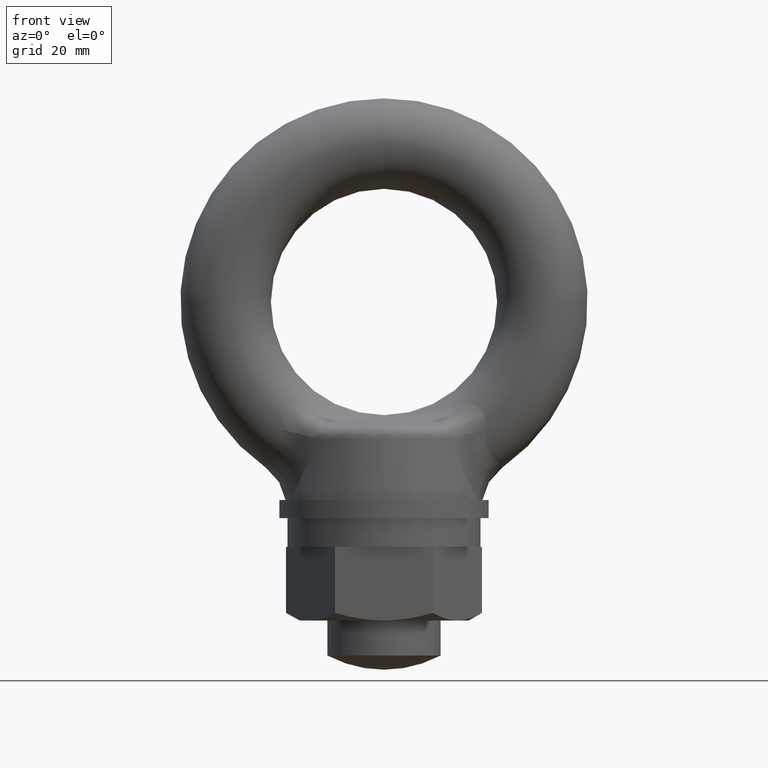
[diagram: clean part render]
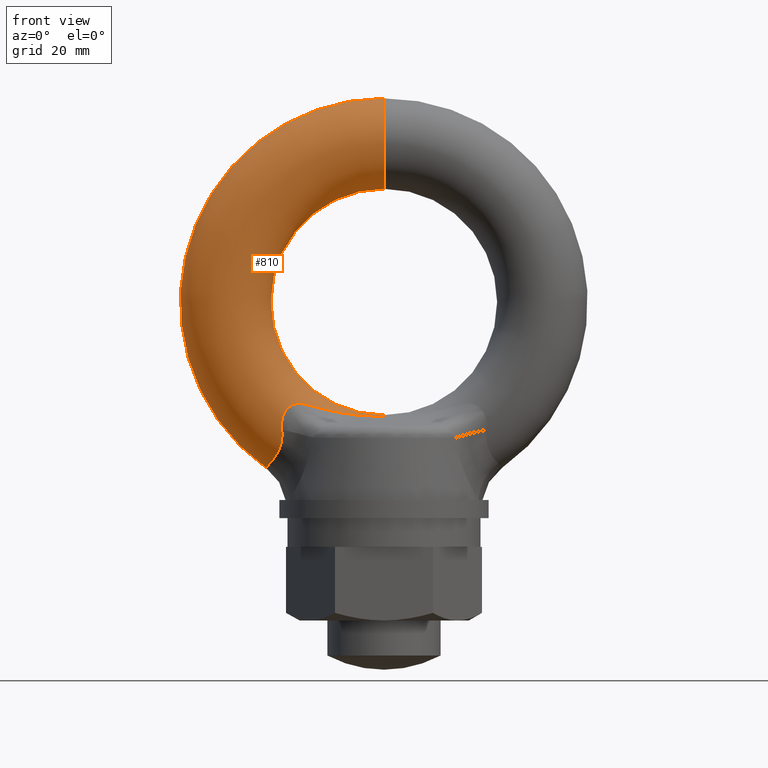
[diagram: same view with one face highlighted and labeled with its STEP entity id]
A machine part, front view. The second image highlights one B-rep face of the part: STEP entity #810.
In plain terms, the highlighted toroidal blend (fillet) surface has major radius 28 mm and minor (blend) radius 8 mm.
Its self-contained STEP definition (entity closure, byte-faithful):
#363 = EDGE_CURVE ( 'NONE', #554, #364, #2093, .T. ) ;
#364 = VERTEX_POINT ( 'NONE', #2094 ) ;
#365 = ORIENTED_EDGE ( 'NONE', *, *, #366, .T. ) ;
#366 = EDGE_CURVE ( 'NONE', #364, #367, #2092, .T. ) ;
#367 = VERTEX_POINT ( 'NONE', #2117 ) ;
#368 = ORIENTED_EDGE ( 'NONE', *, *, #369, .F. ) ;
#369 = EDGE_CURVE ( 'NONE', #599, #367, #2116, .T. ) ;
#539 = ORIENTED_EDGE ( 'NONE', *, *, #540, .T. ) ;
#540 = EDGE_CURVE ( 'NONE', #815, #541, #2922, .T. ) ;
#541 = VERTEX_POINT ( 'NONE', #2917 ) ;
#542 = ORIENTED_EDGE ( 'NONE', *, *, #543, .T. ) ;
#543 = EDGE_CURVE ( 'NONE', #541, #544, #2916, .T. ) ;
#544 = VERTEX_POINT ( 'NONE', #2915 ) ;
#545 = ORIENTED_EDGE ( 'NONE', *, *, #546, .T. ) ;
#546 = EDGE_CURVE ( 'NONE', #544, #547, #2905, .T. ) ;
#547 = VERTEX_POINT ( 'NONE', #3222 ) ;
#552 = ORIENTED_EDGE ( 'NONE', *, *, #553, .T. ) ;
#553 = EDGE_CURVE ( 'NONE', #547, #554, #3220, .T. ) ;
#554 = VERTEX_POINT ( 'NONE', #3219 ) ;
#555 = ORIENTED_EDGE ( 'NONE', *, *, #363, .T. ) ;
#599 = VERTEX_POINT ( 'NONE', #3112 ) ;
#810 = ADVANCED_FACE ( 'NONE', ( #2590 ), #2588, .T. ) ;
#811 = EDGE_LOOP ( 'NONE', ( #813, #539, #542, #545, #552, #555, #365, #368 ) ) ;
#813 = ORIENTED_EDGE ( 'NONE', *, *, #814, .F. ) ;
#814 = EDGE_CURVE ( 'NONE', #815, #599, #2584, .T. ) ;
#815 = VERTEX_POINT ( 'NONE', #2579 ) ;
#2081 = CARTESIAN_POINT ( 'NONE',  ( -2.288186762667789900, -2.095962064465069400, -20.15610451816338500 ) ) ;
#2082 = CARTESIAN_POINT ( 'NONE',  ( -2.844284425707784600, -2.275894574762710400, -20.13577273363174000 ) ) ;
#2083 = CARTESIAN_POINT ( 'NONE',  ( -4.507113680566904500, -2.822904474455817200, -20.03377866517443800 ) ) ;
#2084 = CARTESIAN_POINT ( 'NONE',  ( -5.607621948508660000, -3.204019384009087400, -19.91148190844952000 ) ) ;
#2085 = CARTESIAN_POINT ( 'NONE',  ( -7.792840797011284500, -3.963240333849474600, -19.57153100779552800 ) ) ;
#2086 = CARTESIAN_POINT ( 'NONE',  ( -8.874770829690676900, -4.343217868695373500, -19.35477693205997000 ) ) ;
#2087 = CARTESIAN_POINT ( 'NONE',  ( -11.02624808514249800, -5.094259217671004900, -18.85268854059859900 ) ) ;
#2088 = CARTESIAN_POINT ( 'NONE',  ( -12.09568278882729900, -5.465681299482348300, -18.56740552890373800 ) ) ;
#2089 = CARTESIAN_POINT ( 'NONE',  ( -13.16581114616844100, -5.822891640927250200, -18.26337593279295000 ) ) ;
#2090 = CARTESIAN_POINT ( 'NONE',  ( 0.0000000000000000000, 0.0000000000000000000, -28.00000000000000000 ) ) ;
#2091 = AXIS2_PLACEMENT_3D ( 'NONE', #2090, #2119, #2118 ) ;
#2092 = CIRCLE ( 'NONE', #2091, 8.000000000000000000 ) ;
#2093 = B_SPLINE_CURVE_WITH_KNOTS ( 'NONE', 3,
 ( #2089, #2088, #2087, #2086, #2085, #2084, #2083, #2082, #2081, #2124, #2123, #2122, #2121, #2120 ),
 .UNSPECIFIED., .F., .F.,
 ( 4, 2, 2, 2, 2, 2, 4 ),
 ( 0.0000000000000000000, 0.003500089843752328500, 0.007000179687504657000, 0.01050026953125698600, 0.01225031445313314900, 0.01312533691407123200, 0.01400035937500931400 ),
 .UNSPECIFIED. ) ;
#2094 = CARTESIAN_POINT ( 'NONE',  ( -6.801776097265342600E-013, -1.648912988659337200, -20.17177632180642600 ) ) ;
#2112 = DIRECTION ( 'NONE',  ( 0.0000000000000000000, 0.0000000000000000000, -1.000000000000000000 ) ) ;
#2113 = DIRECTION ( 'NONE',  ( 0.0000000000000000000, -1.000000000000000000, 0.0000000000000000000 ) ) ;
#2114 = CARTESIAN_POINT ( 'NONE',  ( 0.0000000000000000000, 9.796850830579018100E-016, 0.0000000000000000000 ) ) ;
#2115 = AXIS2_PLACEMENT_3D ( 'NONE', #2114, #2113, #2112 ) ;
#2116 = CIRCLE ( 'NONE', #2115, 20.00000000000000000 ) ;
#2117 = CARTESIAN_POINT ( 'NONE',  ( 0.0000000000000000000, 9.796850830579018100E-016, -20.00000000000000000 ) ) ;
#2118 = DIRECTION ( 'NONE',  ( 0.0000000000000000000, 0.0000000000000000000, 1.000000000000000000 ) ) ;
#2119 = DIRECTION ( 'NONE',  ( -1.000000000000000000, 0.0000000000000000000, 0.0000000000000000000 ) ) ;
#2120 = CARTESIAN_POINT ( 'NONE',  ( -6.801776097265342600E-013, -1.648912988659337200, -20.17177632180642600 ) ) ;
#2121 = CARTESIAN_POINT ( 'NONE',  ( -0.2927174952643083500, -1.648912988659391600, -20.17177632180643000 ) ) ;
#2122 = CARTESIAN_POINT ( 'NONE',  ( -0.5844058307862495200, -1.682952176673653500, -20.17240612736618000 ) ) ;
#2123 = CARTESIAN_POINT ( 'NONE',  ( -1.158679247754199400, -1.790291525782435900, -20.17148670969874800 ) ) ;
#2124 = CARTESIAN_POINT ( 'NONE',  ( -1.442697845560770200, -1.861999122008241200, -20.16971613795676200 ) ) ;
#2579 = CARTESIAN_POINT ( 'NONE',  ( 4.408582873760558900E-015, 0.0000000000000000000, 36.00000000000000700 ) ) ;
#2580 = DIRECTION ( 'NONE',  ( -1.224606353822377000E-016, 0.0000000000000000000, -1.000000000000000000 ) ) ;
#2581 = DIRECTION ( 'NONE',  ( 1.000000000000000000, 0.0000000000000000000, -1.224606353822377300E-016 ) ) ;
#2582 = CARTESIAN_POINT ( 'NONE',  ( 3.428897790702656300E-015, 0.0000000000000000000, 28.00000000000000000 ) ) ;
#2583 = AXIS2_PLACEMENT_3D ( 'NONE', #2582, #2581, #2580 ) ;
#2584 = CIRCLE ( 'NONE', #2583, 8.000000000000000000 ) ;
#2585 = DIRECTION ( 'NONE',  ( 0.0000000000000000000, 0.0000000000000000000, -1.000000000000000000 ) ) ;
#2586 = DIRECTION ( 'NONE',  ( 0.0000000000000000000, -1.000000000000000000, 0.0000000000000000000 ) ) ;
#2587 = AXIS2_PLACEMENT_3D ( 'NONE', #2589, #2586, #2585 ) ;
#2588 = TOROIDAL_SURFACE ( 'NONE', #2587, 28.00000000000000000, 8.000000000000000000 ) ;
#2589 = CARTESIAN_POINT ( 'NONE',  ( 0.0000000000000000000, 0.0000000000000000000, 0.0000000000000000000 ) ) ;
#2590 = FACE_OUTER_BOUND ( 'NONE', #811, .T. ) ;
#2905 = B_SPLINE_CURVE_WITH_KNOTS ( 'NONE', 3,
 ( #3078, #3114, #3113, #3202, #3201, #3077, #3076, #3144, #3143, #3142, #3337, #3336, #3335, #3334, #3224, #3223 ),
 .UNSPECIFIED., .F., .F.,
 ( 4, 2, 2, 2, 2, 2, 2, 4 ),
 ( 0.01610551802902950400, 0.01711428254501621100, 0.01812304706100292100, 0.02014057609297633900, 0.02114934060896304900, 0.02215810512494975600, 0.02316686964093646700, 0.02417563415692317700 ),
 .UNSPECIFIED. ) ;
#2907 = CARTESIAN_POINT ( 'NONE',  ( -20.22635143677735000, -3.850677136497690200, -28.57893508878720100 ) ) ;
#2908 = CARTESIAN_POINT ( 'NONE',  ( -20.45218448737302100, -3.258859881794897700, -28.81724781712205500 ) ) ;
#2909 = CARTESIAN_POINT ( 'NONE',  ( -20.59603642070353400, -2.638285941380809500, -29.01523389992597400 ) ) ;
#2910 = CARTESIAN_POINT ( 'NONE',  ( -20.73540599022221900, -1.666234829499332100, -29.22248958426969200 ) ) ;
#2911 = CARTESIAN_POINT ( 'NONE',  ( -20.76888547548118400, -1.332880035850257500, -29.27674697320311700 ) ) ;
#2912 = CARTESIAN_POINT ( 'NONE',  ( -20.81241227235394900, -0.6665516782714794300, -29.34876666378846700 ) ) ;
#2913 = CARTESIAN_POINT ( 'NONE',  ( -20.82274396233959400, -0.3333125823818162700, -29.36687477207695100 ) ) ;
#2914 = CARTESIAN_POINT ( 'NONE',  ( -20.82274396233959700, -4.779909794809850600E-016, -29.36687477207695500 ) ) ;
#2915 = CARTESIAN_POINT ( 'NONE',  ( -20.22635143677735000, -3.850677136497690200, -28.57893508878720100 ) ) ;
#2916 = B_SPLINE_CURVE_WITH_KNOTS ( 'NONE', 3,
 ( #2914, #2913, #2912, #2911, #2910, #2909, #2908, #2907 ),
 .UNSPECIFIED., .F., .F.,
 ( 4, 2, 2, 4 ),
 ( 0.004061130604967868800, 0.005076329865826367300, 0.006091529126684865800, 0.008121927648401864500 ),
 .UNSPECIFIED. ) ;
#2917 = CARTESIAN_POINT ( 'NONE',  ( -20.82274396233959700, -4.779909794809850600E-016, -29.36687477207695500 ) ) ;
#2918 = DIRECTION ( 'NONE',  ( 0.0000000000000000000, 0.0000000000000000000, -1.000000000000000000 ) ) ;
#2919 = DIRECTION ( 'NONE',  ( 0.0000000000000000000, -1.000000000000000000, 0.0000000000000000000 ) ) ;
#2920 = CARTESIAN_POINT ( 'NONE',  ( 0.0000000000000000000, 0.0000000000000000000, 0.0000000000000000000 ) ) ;
#2921 = AXIS2_PLACEMENT_3D ( 'NONE', #2920, #2919, #2918 ) ;
#2922 = CIRCLE ( 'NONE', #2921, 36.00000000000000700 ) ;
#3076 = CARTESIAN_POINT ( 'NONE',  ( -18.89647459336574500, -6.400572332127117300, -26.86654441111974700 ) ) ;
#3077 = CARTESIAN_POINT ( 'NONE',  ( -19.18056745787588800, -5.971913125181020900, -27.30223167005001300 ) ) ;
#3078 = CARTESIAN_POINT ( 'NONE',  ( -20.22635143677735000, -3.850677136497690200, -28.57893508878720100 ) ) ;
#3112 = CARTESIAN_POINT ( 'NONE',  ( 2.449212707644754900E-015, 0.0000000000000000000, 20.00000000000000000 ) ) ;
#3113 = CARTESIAN_POINT ( 'NONE',  ( -19.99258515031222700, -4.426770075522743000, -28.32748653070828800 ) ) ;
#3114 = CARTESIAN_POINT ( 'NONE',  ( -20.11427152996070700, -4.144393324560699200, -28.46066157516942100 ) ) ;
#3115 = CARTESIAN_POINT ( 'NONE',  ( -16.81098070684610200, -7.430801401975548600, -18.54565475779688900 ) ) ;
#3116 = CARTESIAN_POINT ( 'NONE',  ( -17.18029630242248700, -7.618353206800730200, -18.88785364446993100 ) ) ;
#3117 = CARTESIAN_POINT ( 'NONE',  ( -17.39227668821254400, -7.723481714237320400, -19.17235907743152600 ) ) ;
#3118 = CARTESIAN_POINT ( 'NONE',  ( -17.72613025056091700, -7.878836449315238100, -19.79191951133551100 ) ) ;
#3119 = CARTESIAN_POINT ( 'NONE',  ( -17.84987959965029000, -7.930441025987373200, -20.12360288935503400 ) ) ;
#3120 = CARTESIAN_POINT ( 'NONE',  ( -18.02878430504984000, -7.993391866429646200, -20.82156496729872000 ) ) ;
#3142 = CARTESIAN_POINT ( 'NONE',  ( -18.23158240396274400, -7.375861049605298100, -25.21381516144220900 ) ) ;
#3143 = CARTESIAN_POINT ( 'NONE',  ( -18.41493576542328000, -7.101233061930403600, -25.80065298911719300 ) ) ;
#3144 = CARTESIAN_POINT ( 'NONE',  ( -18.52675622652377600, -6.940743853943771100, -26.08212912476770700 ) ) ;
#3197 = CARTESIAN_POINT ( 'NONE',  ( -18.08006779931692900, -8.003476655799941500, -21.17334052725825800 ) ) ;
#3198 = CARTESIAN_POINT ( 'NONE',  ( -18.12260647304777500, -7.994548373312367700, -21.87993876361077000 ) ) ;
#3199 = CARTESIAN_POINT ( 'NONE',  ( -18.11356389061676700, -7.975347067419112300, -22.23504698598968300 ) ) ;
#3200 = CARTESIAN_POINT ( 'NONE',  ( -18.07603648372269600, -7.945372300636390300, -22.59188056541010100 ) ) ;
#3201 = CARTESIAN_POINT ( 'NONE',  ( -19.59844567961869200, -5.230220122879413400, -27.86015683620673000 ) ) ;
#3202 = CARTESIAN_POINT ( 'NONE',  ( -19.73498437145486400, -4.969169817883323700, -28.02760433356973000 ) ) ;
#3219 = CARTESIAN_POINT ( 'NONE',  ( -13.16581114616844100, -5.822891640927250200, -18.26337593279295000 ) ) ;
#3220 = B_SPLINE_CURVE_WITH_KNOTS ( 'NONE', 3,
 ( #3200, #3199, #3198, #3197, #3120, #3119, #3118, #3117, #3116, #3115, #3346, #3345, #3344, #3343, #3342, #3341, #3340, #3339, #3338, #3230 ),
 .UNSPECIFIED., .F., .F.,
 ( 4, 2, 2, 2, 2, 2, 2, 2, 2, 4 ),
 ( 0.0000000000000000000, 0.001061884085914531300, 0.002123768171829062500, 0.003185652257743594000, 0.004247536343658125100, 0.004778478386615393400, 0.005309420429572662600, 0.006371304515487208000, 0.007433188601401748100, 0.008495072687316288300 ),
 .UNSPECIFIED. ) ;
#3222 = CARTESIAN_POINT ( 'NONE',  ( -18.07603648372269600, -7.945372300636390300, -22.59188056541010100 ) ) ;
#3223 = CARTESIAN_POINT ( 'NONE',  ( -18.07603648372269600, -7.945372300636390300, -22.59188056541010100 ) ) ;
#3224 = CARTESIAN_POINT ( 'NONE',  ( -18.04054247296236100, -7.917021695497933100, -22.92937936844069600 ) ) ;
#3230 = CARTESIAN_POINT ( 'NONE',  ( -13.16581114616844100, -5.822891640927250200, -18.26337593279295000 ) ) ;
#3334 = CARTESIAN_POINT ( 'NONE',  ( -18.02294308099864400, -7.875853099239254400, -23.26748662458160800 ) ) ;
#3335 = CARTESIAN_POINT ( 'NONE',  ( -18.03220608410685300, -7.758872730580870700, -23.93743834888671500 ) ) ;
#3336 = CARTESIAN_POINT ( 'NONE',  ( -18.05958299474205500, -7.682464375572249300, -24.27030221711562800 ) ) ;
#3337 = CARTESIAN_POINT ( 'NONE',  ( -18.15940386058476000, -7.491003069110534300, -24.90757987614506800 ) ) ;
#3338 = CARTESIAN_POINT ( 'NONE',  ( -13.49608025271707000, -5.933135930324516100, -18.16954458781173500 ) ) ;
#3339 = CARTESIAN_POINT ( 'NONE',  ( -13.82544064071039000, -6.053619954093565300, -18.08939103995022200 ) ) ;
#3340 = CARTESIAN_POINT ( 'NONE',  ( -14.48640084289624300, -6.316706671593726300, -17.97827653573514100 ) ) ;
#3341 = CARTESIAN_POINT ( 'NONE',  ( -14.81750220859130400, -6.459337599431634700, -17.94770816610432000 ) ) ;
#3342 = CARTESIAN_POINT ( 'NONE',  ( -15.46841800058392600, -6.757654925999480300, -17.97081371513874300 ) ) ;
#3343 = CARTESIAN_POINT ( 'NONE',  ( -15.79371041505116900, -6.916048541418006400, -18.02615464871732000 ) ) ;
#3344 = CARTESIAN_POINT ( 'NONE',  ( -16.25075426370440100, -7.145089189322589200, -18.19840523469892800 ) ) ;
#3345 = CARTESIAN_POINT ( 'NONE',  ( -16.39998693967268700, -7.220948621053674200, -18.27151688570332100 ) ) ;
#3346 = CARTESIAN_POINT ( 'NONE',  ( -16.67968600936423200, -7.363606258302809200, -18.44515517041799100 ) ) ;